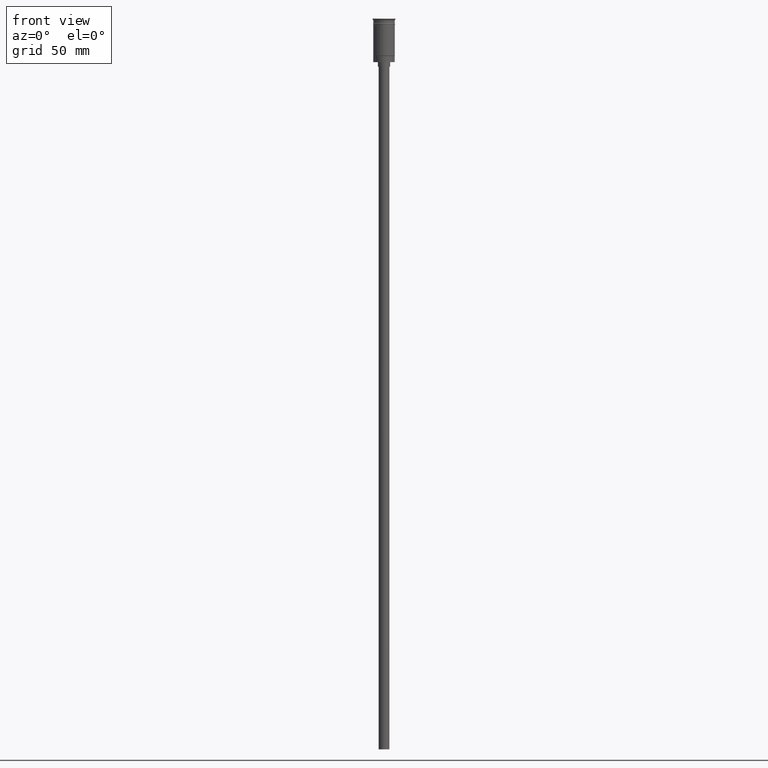
[diagram: clean part render]
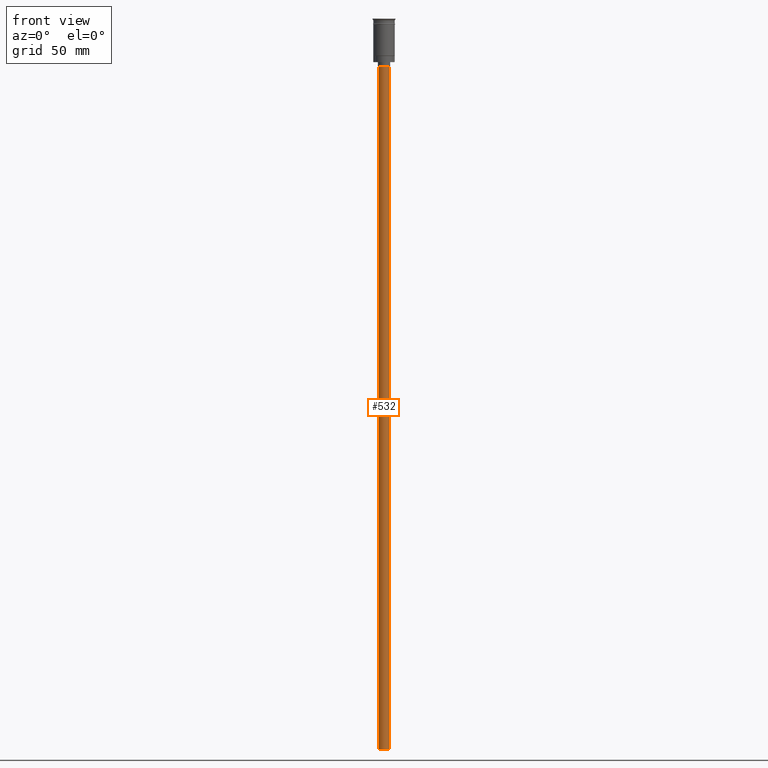
[diagram: same view with one face highlighted and labeled with its STEP entity id]
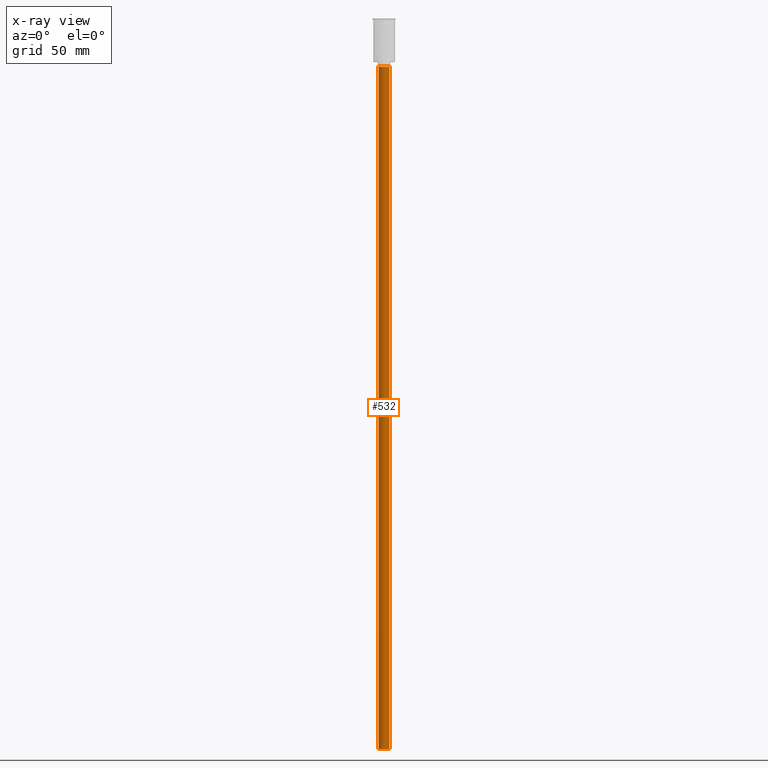
[diagram: x-ray of the same camera — body ghosted, the highlighted face saturated]
A machine part, front view. The second image highlights one B-rep face of the part: STEP entity #532.
The next image is the same camera in x-ray: the body ghosted, the highlighted face saturated — about 0% of this face is hidden behind the body in this view.
In plain terms, the highlighted cylindrical surface (edge-blend (fillet) strip) has radius 3.5 mm, axis along (-0, -0, 1).
Its self-contained STEP definition (entity closure, byte-faithful):
#95 = CARTESIAN_POINT ( 'NONE',  ( -3.500000000000000444, 4.286263797015737088E-16, -31.50000000000000000 ) ) ;
#106 = VECTOR ( 'NONE', #429, 1000.000000000000000 ) ;
#122 = DIRECTION ( 'NONE',  ( 0.000000000000000000, 0.000000000000000000, -1.000000000000000000 ) ) ;
#129 = CARTESIAN_POINT ( 'NONE',  ( 0.000000000000000000, 0.000000000000000000, -478.5000000000000568 ) ) ;
#132 = CARTESIAN_POINT ( 'NONE',  ( 3.500000000000000444, 0.000000000000000000, -478.5000000000000568 ) ) ;
#142 = CARTESIAN_POINT ( 'NONE',  ( -3.500000000000000444, 4.286263797015737088E-16, -478.5000000000000568 ) ) ;
#177 = ORIENTED_EDGE ( 'NONE', *, *, #1000, .T. ) ;
#251 = CARTESIAN_POINT ( 'NONE',  ( 0.000000000000000000, 0.000000000000000000, -31.50000000000000000 ) ) ;
#337 = DIRECTION ( 'NONE',  ( -1.000000000000000000, 0.000000000000000000, 0.000000000000000000 ) ) ;
#360 = CARTESIAN_POINT ( 'NONE',  ( 0.000000000000000000, 0.000000000000000000, -478.5000000000000568 ) ) ;
#410 = ORIENTED_EDGE ( 'NONE', *, *, #1527, .T. ) ;
#428 = VERTEX_POINT ( 'NONE', #132 ) ;
#429 = DIRECTION ( 'NONE',  ( -0.000000000000000000, -0.000000000000000000, 1.000000000000000000 ) ) ;
#453 = DIRECTION ( 'NONE',  ( 0.000000000000000000, 0.000000000000000000, -1.000000000000000000 ) ) ;
#488 = DIRECTION ( 'NONE',  ( -1.000000000000000000, 0.000000000000000000, 0.000000000000000000 ) ) ;
#498 = AXIS2_PLACEMENT_3D ( 'NONE', #251, #122, #488 ) ;
#509 = DIRECTION ( 'NONE',  ( 1.000000000000000000, 0.000000000000000000, 0.000000000000000000 ) ) ;
#532 = ADVANCED_FACE ( 'NONE', ( #1249 ), #1399, .T. ) ;
#535 = CARTESIAN_POINT ( 'NONE',  ( 3.500000000000000444, 0.000000000000000000, -31.50000000000000000 ) ) ;
#560 = LINE ( 'NONE', #937, #106 ) ;
#608 = VERTEX_POINT ( 'NONE', #95 ) ;
#645 = EDGE_CURVE ( 'NONE', #428, #902, #1514, .T. ) ;
#690 = ORIENTED_EDGE ( 'NONE', *, *, #1554, .F. ) ;
#726 = AXIS2_PLACEMENT_3D ( 'NONE', #129, #1115, #509 ) ;
#830 = VECTOR ( 'NONE', #1473, 1000.000000000000000 ) ;
#902 = VERTEX_POINT ( 'NONE', #1286 ) ;
#920 = ORIENTED_EDGE ( 'NONE', *, *, #645, .F. ) ;
#937 = CARTESIAN_POINT ( 'NONE',  ( 3.500000000000000444, 0.000000000000000000, -478.5000000000000568 ) ) ;
#982 = CIRCLE ( 'NONE', #498, 3.500000000000000444 ) ;
#992 = EDGE_LOOP ( 'NONE', ( #690, #920, #177, #410 ) ) ;
#1000 = EDGE_CURVE ( 'NONE', #428, #1026, #560, .T. ) ;
#1026 = VERTEX_POINT ( 'NONE', #535 ) ;
#1115 = DIRECTION ( 'NONE',  ( -0.000000000000000000, -0.000000000000000000, 1.000000000000000000 ) ) ;
#1121 = AXIS2_PLACEMENT_3D ( 'NONE', #360, #453, #337 ) ;
#1213 = LINE ( 'NONE', #142, #830 ) ;
#1249 = FACE_OUTER_BOUND ( 'NONE', #992, .T. ) ;
#1286 = CARTESIAN_POINT ( 'NONE',  ( -3.500000000000000444, 4.286263797015737088E-16, -478.5000000000000568 ) ) ;
#1399 = CYLINDRICAL_SURFACE ( 'NONE', #726, 3.500000000000000444 ) ;
#1473 = DIRECTION ( 'NONE',  ( -0.000000000000000000, -0.000000000000000000, 1.000000000000000000 ) ) ;
#1514 = CIRCLE ( 'NONE', #1121, 3.500000000000000444 ) ;
#1527 = EDGE_CURVE ( 'NONE', #1026, #608, #982, .T. ) ;
#1554 = EDGE_CURVE ( 'NONE', #902, #608, #1213, .T. ) ;